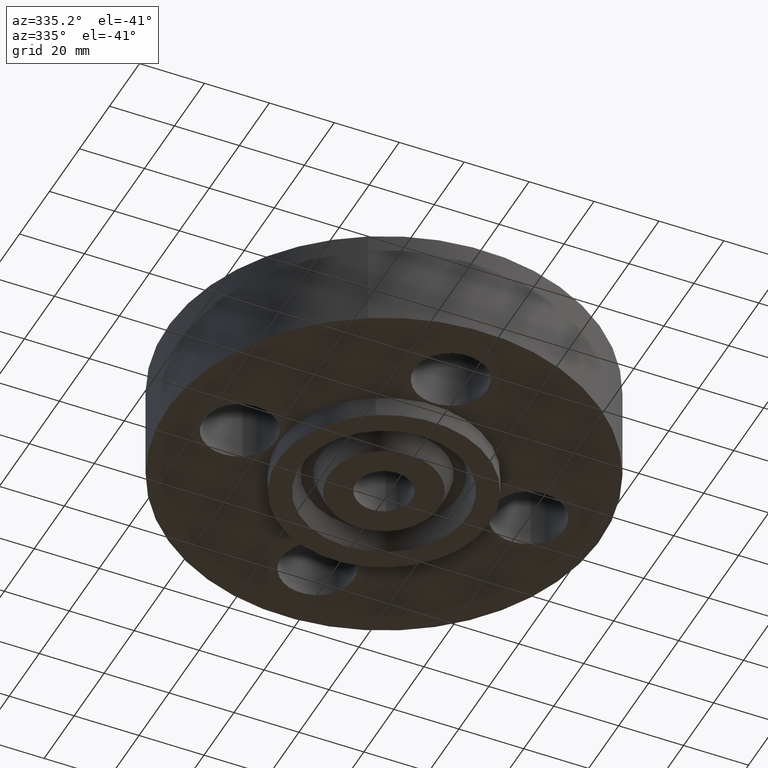
[diagram: clean part render]
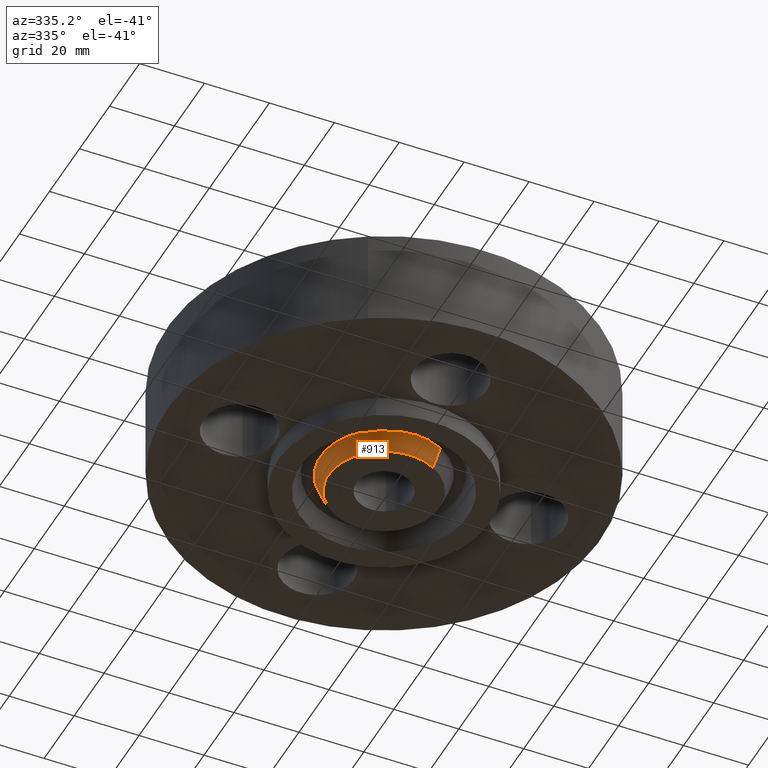
[diagram: same view with one face highlighted and labeled with its STEP entity id]
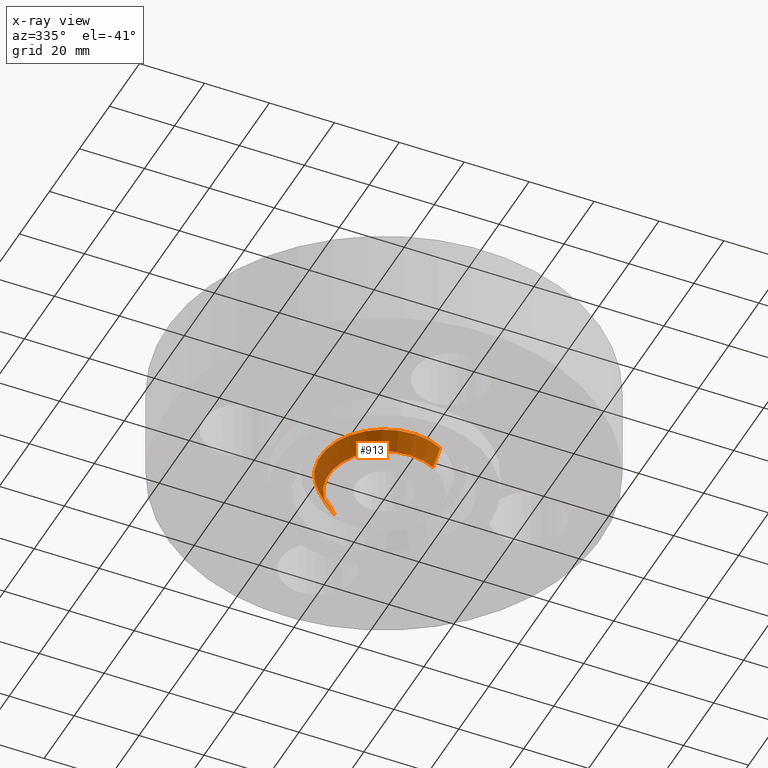
[diagram: x-ray of the same camera — body ghosted, the highlighted face saturated]
A machine part, auxiliary view. The second image highlights one B-rep face of the part: STEP entity #913.
The next image is the same camera in x-ray: the body ghosted, the highlighted face saturated — about 0% of this face is hidden behind the body in this view.
In plain terms, the highlighted conical surface has half-angle 23 deg.
Its self-contained STEP definition (entity closure, byte-faithful):
#721=AXIS2_PLACEMENT_3D('Circle Axis2P3D',#719,#720,$) ;
#875=AXIS2_PLACEMENT_3D('Circle Axis2P3D',#873,#874,$) ;
#888=AXIS2_PLACEMENT_3D('Cone Axis2P3D',#885,#886,#887) ;
#714=CARTESIAN_POINT('Vertex',(-0.322173961943,0.589735481593,-0.250000000001)) ;
#716=CARTESIAN_POINT('Vertex',(0.322173961943,-0.589735481593,-0.250000000001)) ;
#719=CARTESIAN_POINT('Axis2P3D Location',(1.39870617276E-016,-6.99353086378E-017,-0.250000000001)) ;
#851=CARTESIAN_POINT('Vertex',(0.369206329292,-0.675827652547,-0.0188873350169)) ;
#858=CARTESIAN_POINT('Vertex',(-0.369206329292,0.675827652547,-0.0188873350169)) ;
#873=CARTESIAN_POINT('Axis2P3D Location',(0.,0.,-0.0188873350169)) ;
#885=CARTESIAN_POINT('Axis2P3D Location',(0.,0.,-0.310000000001)) ;
#890=CARTESIAN_POINT('Line Origine',(-0.345690145618,0.63278156707,-0.134443667509)) ;
#895=CARTESIAN_POINT('Line Origine',(0.345690145618,-0.63278156707,-0.134443667509)) ;
#720=DIRECTION('Axis2P3D Direction',(0.,0.,-0.0393700787402)) ;
#874=DIRECTION('Axis2P3D Direction',(0.,0.,0.0393700787402)) ;
#886=DIRECTION('Axis2P3D Direction',(0.,0.,0.0393700787402)) ;
#887=DIRECTION('Axis2P3D XDirection',(-0.0188750212049,0.0345504945626,0.)) ;
#891=DIRECTION('Vector Direction',(-0.00737505833565,0.0134999537303,0.0362403485611)) ;
#896=DIRECTION('Vector Direction',(0.00737505833565,-0.0134999537303,0.0362403485611)) ;
#892=VECTOR('Line Direction',#891,0.0393700787402) ;
#897=VECTOR('Line Direction',#896,0.0393700787402) ;
#908=ORIENTED_EDGE('',*,*,#899,.F.) ;
#909=ORIENTED_EDGE('',*,*,#877,.F.) ;
#910=ORIENTED_EDGE('',*,*,#894,.T.) ;
#911=ORIENTED_EDGE('',*,*,#723,.F.) ;
#913=ADVANCED_FACE('PartBody',(#912),#889,.T.) ;
#722=CIRCLE('generated circle',#721,0.672000000003) ;
#876=CIRCLE('generated circle',#875,0.770101505996) ;
#889=CONICAL_SURFACE('Cone',#888,0.64653151103,0.401425727959) ;
#723=EDGE_CURVE('',#717,#715,#722,.T.) ;
#877=EDGE_CURVE('',#859,#852,#876,.T.) ;
#894=EDGE_CURVE('',#859,#715,#893,.F.) ;
#899=EDGE_CURVE('',#852,#717,#898,.F.) ;
#907=EDGE_LOOP('',(#908,#909,#910,#911)) ;
#912=FACE_OUTER_BOUND('',#907,.T.) ;
#893=LINE('Line',#890,#892) ;
#898=LINE('Line',#895,#897) ;
#715=VERTEX_POINT('',#714) ;
#717=VERTEX_POINT('',#716) ;
#852=VERTEX_POINT('',#851) ;
#859=VERTEX_POINT('',#858) ;